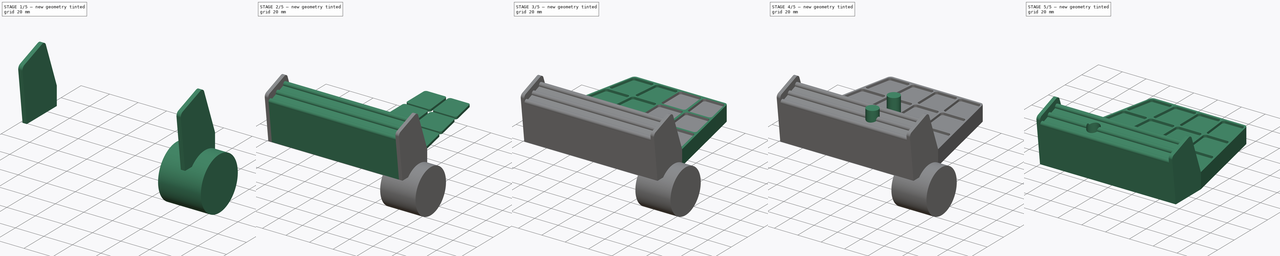
[diagram: build sequence overview — one tinted view per stage of 5, left to right]
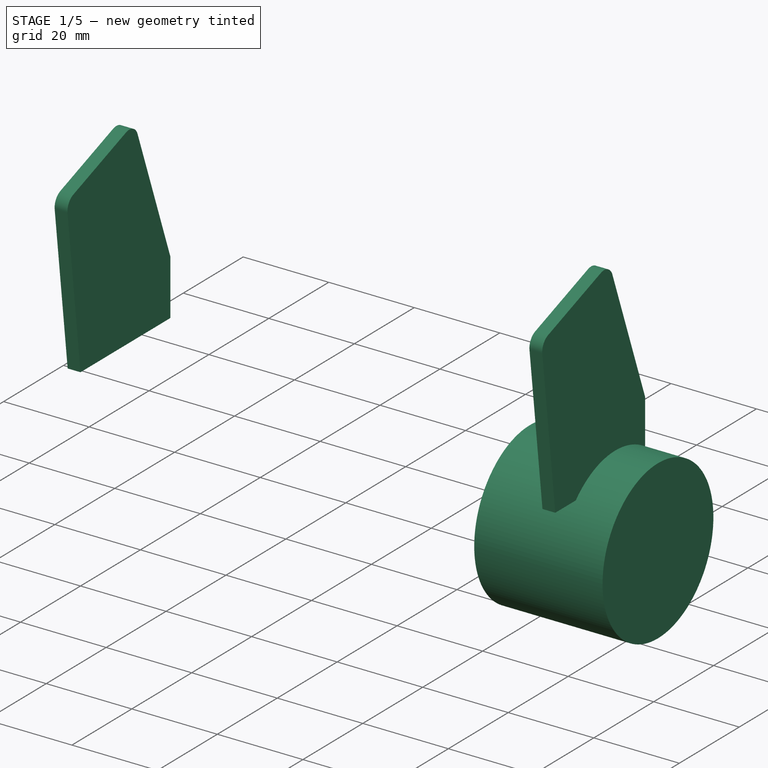
[diagram: stage 1 of 5 — iso view after this stage's code; geometry added in this stage tinted green]
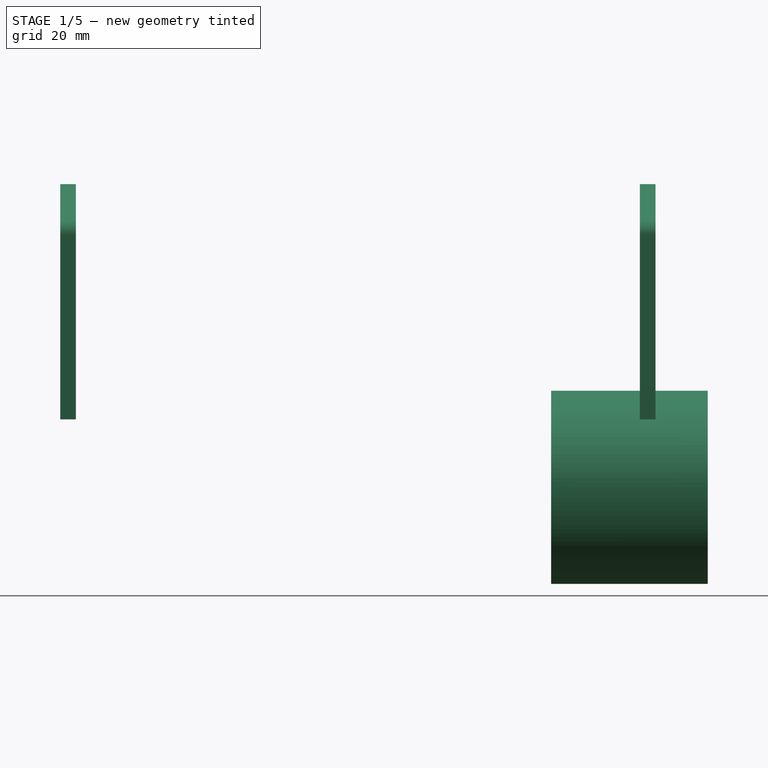
[diagram: stage 1 of 5 — front view after this stage's code; geometry added in this stage tinted green]
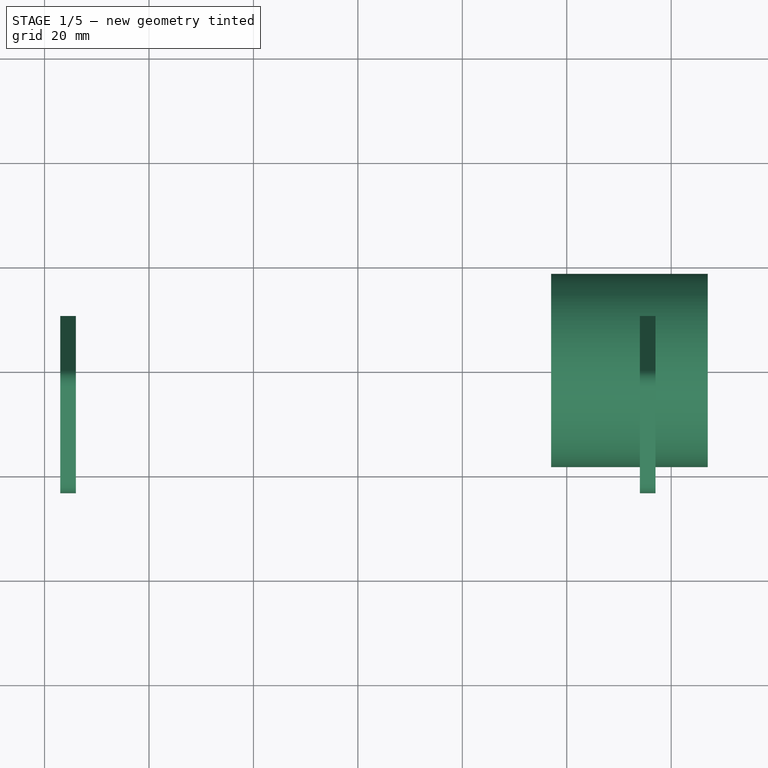
[diagram: stage 1 of 5 — top view after this stage's code; geometry added in this stage tinted green]
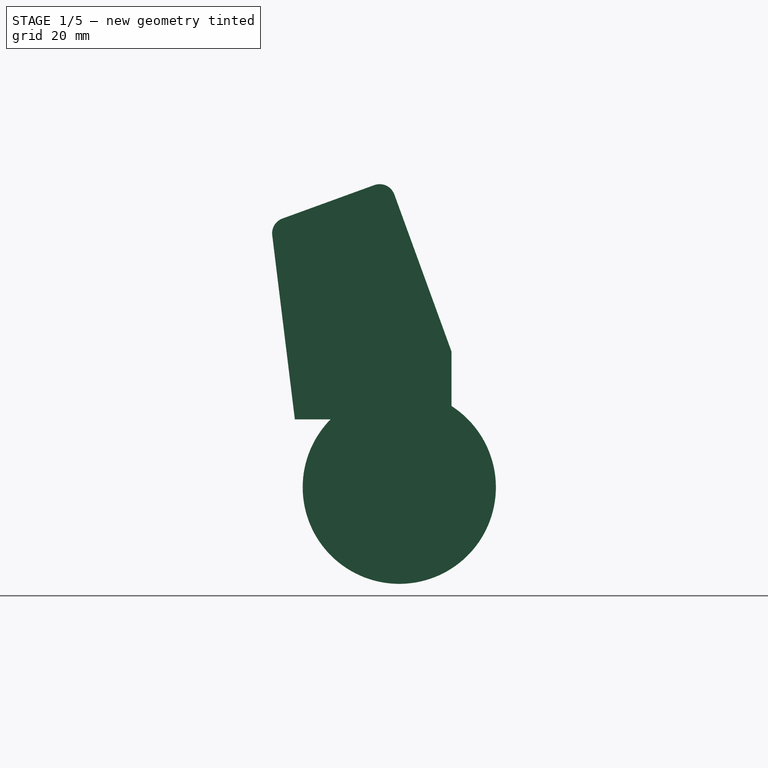
[diagram: stage 1 of 5 — right view after this stage's code; geometry added in this stage tinted green]
FCSTD DOCUMENT  (FreeCAD 0.16R6706 (Git))
Label: rudder_pedals
License: All rights reserved
LicenseURL: http://en.wikipedia.org/wiki/All_rights_reserved
objects: PartDesign::Pad×8, Sketcher::SketchObject×7, Part::Cut×3, Part::MultiFuse×2, Part::FeaturePython×1, Part::Compound×1, Part::Part2DObjectPython×1, Part::Mirroring×1
note: 32 computed .brp shape members not serialized (recipe doc carries the construction recipe); baked Part::Feature solids carry a one-line shape summary decoded from their .brp

FEATURE [Sketcher::SketchObject] Sketch005  label="Sketch (push tread side)"
  Placement = pos=(54,0,0) rot=(0.57735,0.57735,0.57735;2.0944rad)
  expr: Constraints[10] = 90 + 180 - 110
  sketch-geometry (9):
    g0: LineSegment StartX=-20 StartY=-13 StartZ=0 EndX=-24.3314 EndY=22.2763 EndZ=0
    g1: LineSegment StartX=10 StartY=0 StartZ=0 EndX=-0.944644 EndY=30.0702 EndZ=0
    g2: LineSegment StartX=10 StartY=0 StartZ=0 EndX=10 EndY=-13 EndZ=0
    g3: LineSegment StartX=-20 StartY=-13 StartZ=0 EndX=10 EndY=-13 EndZ=0
    g4: LineSegment StartX=-22.3798 StartY=25.4609 StartZ=0 EndX=-4.78978 EndY=31.8632 EndZ=0
    g5: ArcOfCircle CenterX=-3.76372 CenterY=29.0441 CenterZ=0 NormalX=0 NormalY=0 NormalZ=1 Radius=3 StartAngle=0.349066 EndAngle=1.91986
    g6: ArcOfCircle CenterX=-21.3537 CenterY=22.6419 CenterZ=0 NormalX=0 NormalY=0 NormalZ=1 Radius=3 StartAngle=1.91986 EndAngle=3.26376
    g7: LineSegment [constr] StartX=-4.78978 StartY=31.8632 StartZ=0 EndX=-1.97071 EndY=32.8892 EndZ=0
    g8: LineSegment [constr] StartX=-0.944644 StartY=30.0702 StartZ=0 EndX=-1.97071 EndY=32.8892 EndZ=0
  constraints (28):
    c: PointOnObject(g2,g-1)
    c: Vertical(g2)
    c: Coincident(g3,g0)
    c: Coincident(g3,g2)
    c: Horizontal(g3)
    c: DistanceY(g2,g2) = 13
    c: DistanceX(g3,g3) = 30
    c: DistanceX(g-1,g2) = 10
    c: Angle(g3,g0) = 1.69297
    c: Coincident(g1,g2)
    c: Angle(g1,g2) = 2.79253
    c: Perpendicular(g4,g1)
    c: Coincident(g5,g4)
    c: Coincident(g5,g1)
    c: Coincident(g6,g4)
    c: Coincident(g6,g0)
    c: Tangent(g4,g6)
    c: Tangent(g6,g0)
    c: Tangent(g4,g5)
    c: Tangent(g1,g5)
    c: Radius(g5) = 3
    c: Equal(g5,g6)
    c: Coincident(g7,g4)
    c: Coincident(g8,g1)
    c: Coincident(g8,g7)
    c: Parallel(g1,g8)
    c: Parallel(g7,g4)
    c: Distance(g7,g1) = 35
FEATURE [PartDesign::Pad] Pad005  label="Pad (push tread right side)"
  Length = 3
  Length2 = 100
  Placement = pos=(54,0,0) rot=(0.57735,0.57735,0.57735;2.0944rad)
  Sketch = -> Sketch005
  Type = 0
FEATURE [Part::Part2DObjectPython] Clone2D  label="Clone of Sketch (push tread sides)"  # Draft 2D object (typed FeaturePython)
  Objects = -> [Sketch005]
  Placement = pos=(-54,0,0) rot=(0.57735,0.57735,0.57735;2.0944rad)
  Scale = (1,1,1)
FEATURE [PartDesign::Pad] Pad006  label="Pad (push tread left side)"
  Length = 3
  Length2 = 100
  Placement = pos=(-54,0,0) rot=(0.57735,0.57735,0.57735;2.0944rad)
  Reversed = true
  Sketch = -> Clone2D
  Type = 0
FEATURE [Sketcher::SketchObject] Sketch008  label="Sketch (spring cutout)"
  Placement = pos=(37,0,0) rot=(0.57735,0.57735,0.57735;2.0944rad)
  expr: Constraints[3] = 13 - 5.5
  expr: Constraints[4] = 37 / 2
  expr: Placement.Base.x = 57 - 20
  sketch-geometry (3):
    g0: Circle CenterX=0 CenterY=-26 CenterZ=0 NormalX=0 NormalY=0 NormalZ=1 Radius=18.5
    g1: LineSegment [constr] StartX=-5.4181 StartY=-7.5 StartZ=0 EndX=5.33285 EndY=-7.5 EndZ=0
    g2: Circle [constr] CenterX=0 CenterY=-26 CenterZ=0 NormalX=0 NormalY=0 NormalZ=1 Radius=13
  constraints (7):
    c: PointOnObject(g0,g-2)
    c: Horizontal(g1)
    c: Tangent(g1,g0)
    c: DistanceY(g1,g-1) = 7.5
    c: Radius(g0) = 18.5
    c: Coincident(g2,g0)
    c: Radius(g2) = 13
FEATURE [PartDesign::Pad] Pad009  label="Pad (spring cutout)"
  Length = 30
  Length2 = 100
  Placement = pos=(37,0,0) rot=(0.57735,0.57735,0.57735;2.0944rad)
  Sketch = -> Sketch008
  Type = 0
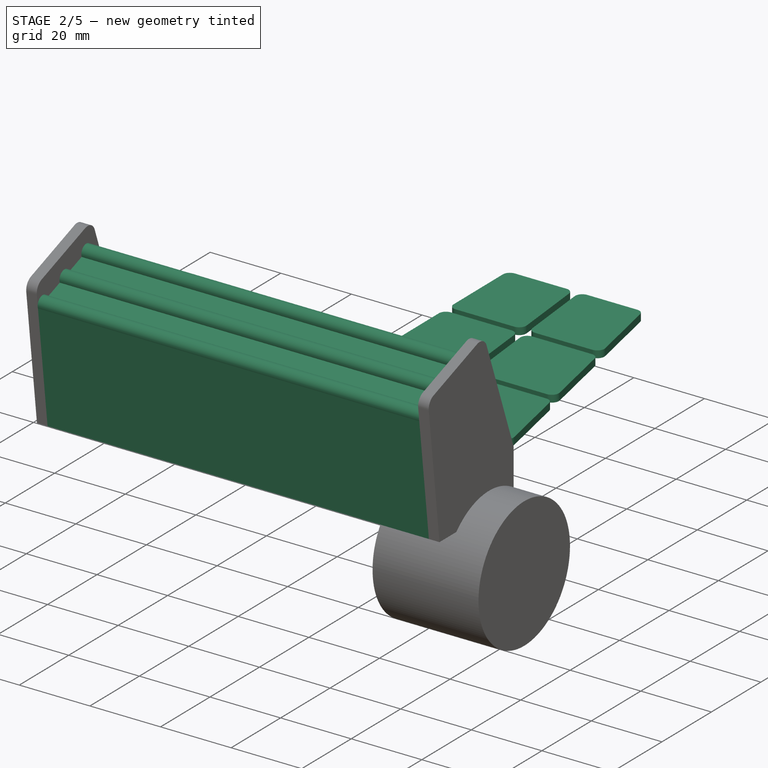
[diagram: stage 2 of 5 — iso view after this stage's code; geometry added in this stage tinted green]
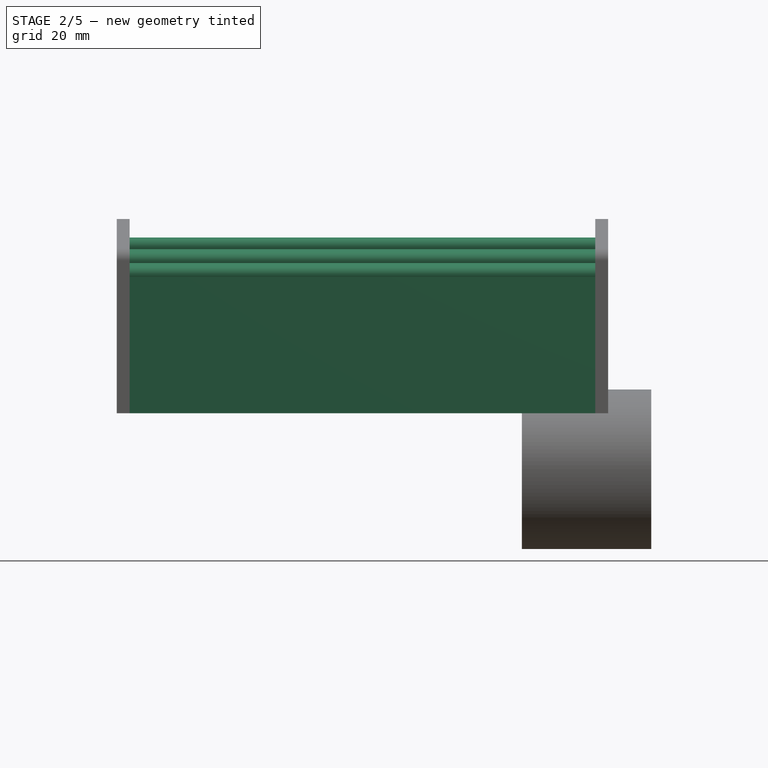
[diagram: stage 2 of 5 — front view after this stage's code; geometry added in this stage tinted green]
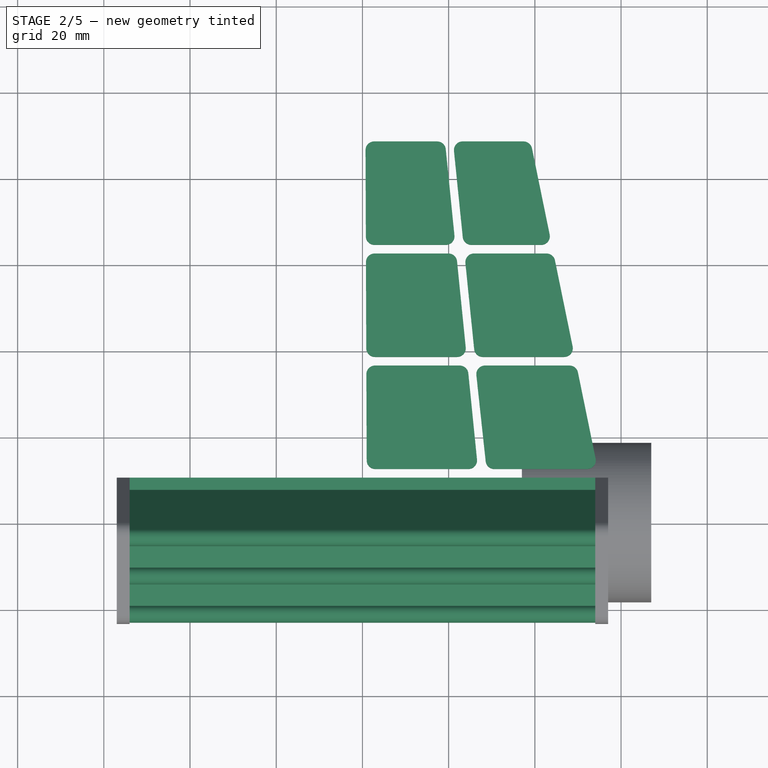
[diagram: stage 2 of 5 — top view after this stage's code; geometry added in this stage tinted green]
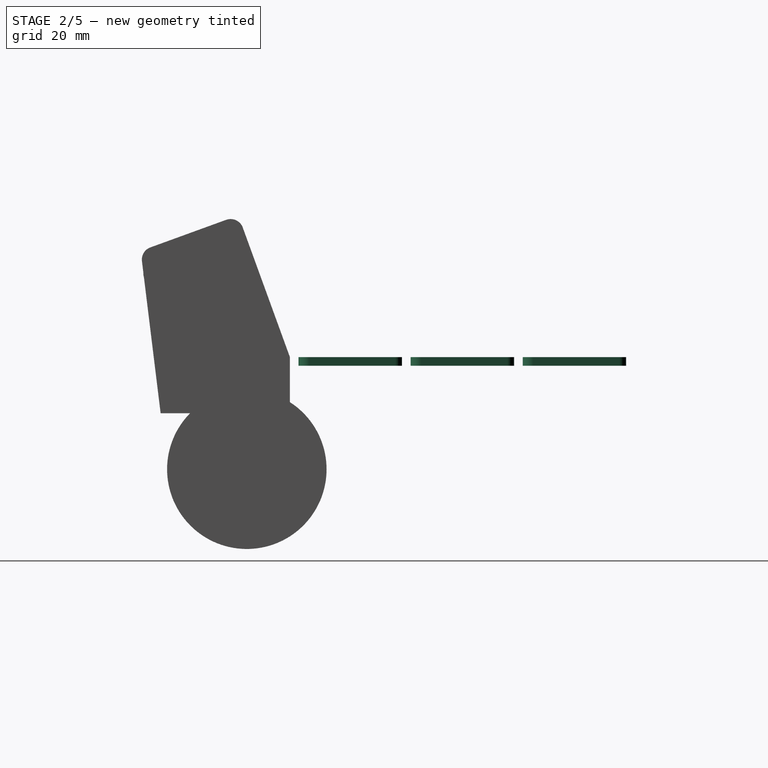
[diagram: stage 2 of 5 — right view after this stage's code; geometry added in this stage tinted green]
FEATURE [Sketcher::SketchObject] Sketch002  label="Sketch (push tread)"
  Placement = pos=(0,0,0) rot=(0.57735,0.57735,0.57735;2.0944rad)
  sketch-geometry (13):
    g0: LineSegment StartX=-20 StartY=-13 StartZ=0 EndX=-23.8846 EndY=18.6371 EndZ=0
    g1: LineSegment StartX=7.15703 StartY=0 StartZ=0 EndX=-2.46401 EndY=26.4336 EndZ=0
    g2: ArcOfCircle CenterX=-4.34339 CenterY=25.7495 CenterZ=0 NormalX=0 NormalY=0 NormalZ=1 Radius=2 StartAngle=0.349066 EndAngle=3.49066
    g3: LineSegment StartX=-6.22278 StartY=25.0655 StartZ=0 EndX=-11.2949 EndY=23.2194 EndZ=0
    g4: ArcOfCircle CenterX=-13.1743 CenterY=22.5354 CenterZ=0 NormalX=0 NormalY=0 NormalZ=1 Radius=2 StartAngle=0.349066 EndAngle=3.49066
    g5: LineSegment StartX=-15.0537 StartY=21.8513 StartZ=0 EndX=-20.1258 EndY=20.0052 EndZ=0
    g6: ArcOfCircle CenterX=-22.0052 CenterY=19.3212 CenterZ=0 NormalX=0 NormalY=0 NormalZ=1 Radius=2 StartAngle=0.349066 EndAngle=3.49066
    g7: LineSegment [constr] StartX=-15.0537 StartY=21.8513 StartZ=0 EndX=-11.2949 EndY=23.2194 EndZ=0
    g8: LineSegment [constr] StartX=-6.22278 StartY=25.0655 StartZ=0 EndX=-2.46401 EndY=26.4336 EndZ=0
    g9: LineSegment [constr] StartX=-23.8846 StartY=18.6371 StartZ=0 EndX=-20.1258 EndY=20.0052 EndZ=0
    g10: LineSegment StartX=7.15703 StartY=0 StartZ=0 EndX=10 EndY=0 EndZ=0
    g11: LineSegment StartX=10 StartY=0 StartZ=0 EndX=10 EndY=-13 EndZ=0
    g12: LineSegment StartX=-20 StartY=-13 StartZ=0 EndX=10 EndY=-13 EndZ=0
  constraints (39):
    c: Coincident(g2,g1)
    c: Coincident(g3,g2)
    c: Coincident(g4,g3)
    c: Coincident(g5,g4)
    c: Coincident(g6,g5)
    c: PointOnObject(g6,g0)
    c: Radius(g4) = 2
    c: Equal(g4,g2)
    c: Equal(g4,g6)
    c: Coincident(g7,g4)
    c: Coincident(g7,g3)
    c: PointOnObject(g4,g7)
    c: Coincident(g8,g2)
    c: Coincident(g8,g1)
    c: PointOnObject(g2,g8)
    c: Coincident(g9,g6)
    c: PointOnObject(g9,g5)
    c: Coincident(g5,g9)
    c: Parallel(g9,g5)
    c: Parallel(g5,g7)
    c: Parallel(g7,g3)
    c: Parallel(g3,g8)
    c: PointOnObject(g6,g9)
    c: Coincident(g10,g1)
    c: PointOnObject(g10,g-1)
    c: Horizontal(g10)
    c: Coincident(g11,g10)
    c: Vertical(g11)
    c: Coincident(g12,g0)
    c: Coincident(g12,g11)
    c: Horizontal(g12)
    c: Coincident(g0,g6)
    c: DistanceY(g11,g11) = 13
    c: DistanceX(g12,g12) = 30
    c: Angle(g10,g1) = 1.91986
    c: DistanceX(g-1,g10) = 10
    c: Perpendicular(g8,g1)
    c: Angle(g12,g0) = 1.69297
    c: Equal(g5,g3)
FEATURE [Sketcher::SketchObject] Sketch004  label="Sketch (tread)"
  sketch-geometry (70):
    g0: LineSegment [constr] StartX=-57 StartY=10 StartZ=0 EndX=0 EndY=278.164 EndZ=0
    g1: LineSegment [constr] StartX=-34.7912 StartY=90 StartZ=0 EndX=34.3674 EndY=90 EndZ=0
    g2: GeomPoint [constr] X=0 Y=0 Z=0
    g3: LineSegment StartX=-48.036 StartY=36.0001 StartZ=0 EndX=-28.4162 EndY=36.0001 EndZ=0
    g4: LineSegment StartX=-26.4278 StartY=33.7851 StartZ=0 EndX=-28.5907 EndY=13.785 EndZ=0
    g5: LineSegment StartX=-30.5791 StartY=12 StartZ=0 EndX=-52.138 EndY=12 EndZ=0
    g6: LineSegment StartX=-54.0972 StartY=14.4018 StartZ=0 EndX=-49.9952 EndY=34.4019 EndZ=0
    g7: ArcOfCircle CenterX=-48.036 CenterY=34.0001 CenterZ=0 NormalX=0 NormalY=0 NormalZ=1 Radius=2 StartAngle=1.5708 EndAngle=2.9393
    g8: ArcOfCircle CenterX=-52.138 CenterY=14 CenterZ=0 NormalX=0 NormalY=0 NormalZ=1 Radius=2 StartAngle=2.9393 EndAngle=4.71239
    g9: ArcOfCircle CenterX=-30.5791 CenterY=14 CenterZ=0 NormalX=0 NormalY=0 NormalZ=1 Radius=2 StartAngle=4.71239 EndAngle=6.17546
    g10: ArcOfCircle CenterX=-28.4162 CenterY=34.0001 CenterZ=0 NormalX=0 NormalY=0 NormalZ=1 Radius=2 StartAngle=6.17546 EndAngle=7.85398
    g11: LineSegment StartX=-42.7034 StartY=62 StartZ=0 EndX=-25.8745 EndY=62 EndZ=0
    g12: LineSegment StartX=-23.8848 StartY=59.7973 StartZ=0 EndX=-25.9229 EndY=39.7972 EndZ=0
    g13: LineSegment StartX=-27.9126 StartY=38 StartZ=0 EndX=-46.8054 EndY=38 EndZ=0
    g14: LineSegment StartX=-48.7646 StartY=40.4018 StartZ=0 EndX=-44.6627 EndY=60.4019 EndZ=0
    g15: ArcOfCircle CenterX=-42.7034 CenterY=60 CenterZ=0 NormalX=0 NormalY=0 NormalZ=1 Radius=2 StartAngle=1.5708 EndAngle=2.9393
    g16: ArcOfCircle CenterX=-46.8054 CenterY=40 CenterZ=0 NormalX=0 NormalY=0 NormalZ=1 Radius=2 StartAngle=2.9393 EndAngle=4.71239
    g17: ArcOfCircle CenterX=-27.9126 CenterY=40 CenterZ=0 NormalX=0 NormalY=0 NormalZ=1 Radius=2 StartAngle=4.71239 EndAngle=6.18163
    g18: ArcOfCircle CenterX=-25.8745 CenterY=60 CenterZ=0 NormalX=0 NormalY=0 NormalZ=1 Radius=2 StartAngle=6.18163 EndAngle=7.85398
    g19: LineSegment StartX=-22.5734 StartY=36.0001 StartZ=0 EndX=-2.91052 EndY=36.0001 EndZ=0
    g20: LineSegment StartX=-0.91053 StartY=33.9926 StartZ=0 EndX=-0.985112 EndY=13.9925 EndZ=0
    g21: LineSegment StartX=-2.9851 StartY=12 StartZ=0 EndX=-24.5871 EndY=12 EndZ=0
    g22: LineSegment StartX=-26.5771 StartY=14.2004 StartZ=0 EndX=-24.5634 EndY=34.2004 EndZ=0
    g23: ArcOfCircle CenterX=-22.5734 CenterY=34.0001 CenterZ=0 NormalX=0 NormalY=0 NormalZ=1 Radius=2 StartAngle=1.5708 EndAngle=3.04125
    g24: ArcOfCircle CenterX=-24.5871 CenterY=14 CenterZ=0 NormalX=0 NormalY=0 NormalZ=1 Radius=2 StartAngle=3.04125 EndAngle=4.71239
    g25: ArcOfCircle CenterX=-2.9851 CenterY=14 CenterZ=0 NormalX=0 NormalY=0 NormalZ=1 Radius=2 StartAngle=4.71239 EndAngle=6.27946
    g26: ArcOfCircle CenterX=-2.91052 CenterY=34.0001 CenterZ=0 NormalX=0 NormalY=0 NormalZ=1 Radius=2 StartAngle=6.27946 EndAngle=7.85398
    g27: LineSegment StartX=-19.9556 StartY=62 StartZ=0 EndX=-2.81356 EndY=62 EndZ=0
    g28: LineSegment StartX=-0.813575 StartY=59.9926 StartZ=0 EndX=-0.888156 EndY=39.9925 EndZ=0
    g29: LineSegment StartX=-2.88814 StartY=38 StartZ=0 EndX=-21.9694 EndY=38 EndZ=0
    g30: LineSegment StartX=-23.9593 StartY=40.2003 StartZ=0 EndX=-21.9456 EndY=60.2004 EndZ=0
    g31: ArcOfCircle CenterX=-19.9556 CenterY=60 CenterZ=0 NormalX=0 NormalY=0 NormalZ=1 Radius=2 StartAngle=1.5708 EndAngle=3.04125
    g32: ArcOfCircle CenterX=-21.9694 CenterY=40 CenterZ=0 NormalX=0 NormalY=0 NormalZ=1 Radius=2 StartAngle=3.04125 EndAngle=4.71239
    g33: ArcOfCircle CenterX=-2.88814 CenterY=40 CenterZ=0 NormalX=0 NormalY=0 NormalZ=1 Radius=2 StartAngle=4.71239 EndAngle=6.27946
    g34: ArcOfCircle CenterX=-2.81356 CenterY=60 CenterZ=0 NormalX=0 NormalY=0 NormalZ=1 Radius=2 StartAngle=6.27946 EndAngle=7.85398
    g35: LineSegment StartX=-37.3709 StartY=88 StartZ=0 EndX=-23.225 EndY=88 EndZ=0
    g36: LineSegment StartX=-21.2353 StartY=85.7972 StartZ=0 EndX=-23.2734 EndY=65.7972 EndZ=0
    g37: LineSegment StartX=-25.2631 StartY=63.9999 StartZ=0 EndX=-41.4729 EndY=63.9999 EndZ=0
    g38: LineSegment StartX=-43.4321 StartY=66.4017 StartZ=0 EndX=-39.3301 EndY=86.4018 EndZ=0
    g39: ArcOfCircle CenterX=-37.3709 CenterY=86 CenterZ=0 NormalX=0 NormalY=0 NormalZ=1 Radius=2 StartAngle=1.5708 EndAngle=2.9393
    g40: ArcOfCircle CenterX=-41.4729 CenterY=65.9999 CenterZ=0 NormalX=0 NormalY=0 NormalZ=1 Radius=2 StartAngle=2.9393 EndAngle=4.71239
    g41: ArcOfCircle CenterX=-25.2631 CenterY=65.9999 CenterZ=0 NormalX=0 NormalY=0 NormalZ=1 Radius=2 StartAngle=4.71239 EndAngle=6.18163
    g42: ArcOfCircle CenterX=-23.225 CenterY=86 CenterZ=0 NormalX=0 NormalY=0 NormalZ=1 Radius=2 StartAngle=6.18163 EndAngle=7.85398
    g43: LineSegment StartX=-17.3379 StartY=88 StartZ=0 EndX=-2.71661 EndY=88 EndZ=0
    g44: LineSegment StartX=-0.716619 StartY=85.9925 StartZ=0 EndX=-0.791201 EndY=65.9925 EndZ=0
    g45: LineSegment StartX=-2.79119 StartY=63.9999 StartZ=0 EndX=-19.3516 EndY=63.9999 EndZ=0
    g46: LineSegment StartX=-21.3415 StartY=66.2003 StartZ=0 EndX=-19.3278 EndY=86.2004 EndZ=0
    g47: ArcOfCircle CenterX=-17.3379 CenterY=86 CenterZ=0 NormalX=0 NormalY=0 NormalZ=1 Radius=2 StartAngle=1.5708 EndAngle=3.04125
    g48: ArcOfCircle CenterX=-19.3516 CenterY=65.9999 CenterZ=0 NormalX=0 NormalY=0 NormalZ=1 Radius=2 StartAngle=3.04125 EndAngle=4.71239
    g49: ArcOfCircle CenterX=-2.79119 CenterY=65.9999 CenterZ=0 NormalX=0 NormalY=0 NormalZ=1 Radius=2 StartAngle=4.71239 EndAngle=6.27946
    g50: ArcOfCircle CenterX=-2.71661 CenterY=86 CenterZ=0 NormalX=0 NormalY=0 NormalZ=1 Radius=2 StartAngle=6.27946 EndAngle=7.85398
    g51: LineSegment [constr] StartX=0 StartY=278.164 StartZ=0 EndX=-1 EndY=10 EndZ=0
    g52: LineSegment [constr] StartX=0 StartY=278.164 StartZ=0 EndX=-27 EndY=10 EndZ=0
    g53: LineSegment [constr] StartX=0 StartY=278.164 StartZ=0 EndX=-29 EndY=10 EndZ=0
    g54: LineSegment [constr] StartX=0 StartY=278.164 StartZ=0 EndX=-55 EndY=10 EndZ=0
    g55: LineSegment [constr] StartX=-57 StartY=10 StartZ=0 EndX=-55 EndY=10 EndZ=0
    g56: LineSegment [constr] StartX=-29 StartY=10 StartZ=0 EndX=-27 EndY=10 EndZ=0
    g57: LineSegment [constr] StartX=-1 StartY=10 StartZ=0 EndX=0 EndY=10 EndZ=0
    g58: LineSegment [constr] StartX=-55 StartY=10 StartZ=0 EndX=-29 EndY=10 EndZ=0
    g59: LineSegment [constr] StartX=-27 StartY=10 StartZ=0 EndX=-1 EndY=10 EndZ=0
    g60: LineSegment [constr] StartX=-23.2734 StartY=65.7972 StartZ=0 EndX=-24.1976 EndY=56.7273 EndZ=0
    g61: LineSegment [constr] StartX=-24.1976 StartY=56.7273 StartZ=0 EndX=-23.8848 EndY=59.7973 EndZ=0
    g62: LineSegment [constr] StartX=-25.2631 StartY=63.9999 StartZ=0 EndX=-19.3516 EndY=63.9999 EndZ=0
    g63: LineSegment [constr] StartX=-25.8745 StartY=62 StartZ=0 EndX=-19.9556 EndY=62 EndZ=0
    g64: LineSegment [constr] StartX=-28.4162 StartY=36.0001 StartZ=0 EndX=-22.5734 EndY=36.0001 EndZ=0
    g65: LineSegment [constr] StartX=-27.9126 StartY=38 StartZ=0 EndX=-21.9694 EndY=38 EndZ=0
    g66: LineSegment [constr] StartX=-30.5791 StartY=12 StartZ=0 EndX=-24.5871 EndY=12 EndZ=0
    g67: LineSegment StartX=-26.686 StartY=31.3978 StartZ=0 EndX=-26.4278 EndY=33.7851 EndZ=0
    g68: LineSegment [constr] StartX=-23.225 StartY=88 StartZ=0 EndX=-17.3379 EndY=88 EndZ=0
    g69: LineSegment [constr] StartX=-34.7912 StartY=90 StartZ=0 EndX=-34.7912 EndY=88 EndZ=0
  constraints (169):
    c: Horizontal(g1)
    c: Coincident(g2,g-1)
    c: DistanceY(g-1,g1) = 90
    c: Horizontal(g5)
    c: Tangent(g3,g7) = 1.5708
    c: Tangent(g6,g7) = 1.5708
    c: Tangent(g6,g8) = 1.5708
    c: Tangent(g5,g8) = 1.5708
    c: Tangent(g5,g9) = 1.5708
    c: Tangent(g4,g9) = 1.5708
    c: Tangent(g3,g10) = 1.5708
    c: Tangent(g4,g10) = 1.5708
    c: Horizontal(g3)
    c: Radius(g9) = 2
    c: Equal(g9,g8)
    c: Equal(g9,g7)
    c: Equal(g9,g10)
    c: Horizontal(g13)
    c: Tangent(g11,g15) = 1.5708
    c: Tangent(g14,g15) = 1.5708
    c: Tangent(g14,g16) = 1.5708
    c: Tangent(g13,g16) = 1.5708
    c: Tangent(g13,g17) = 1.5708
    c: Tangent(g12,g17) = 1.5708
    c: Tangent(g11,g18) = 1.5708
    c: Tangent(g12,g18) = 1.5708
    c: Horizontal(g11)
    c: Equal(g9,g17) = 2
    c: Equal(g17,g16)
    c: Equal(g17,g15)
    c: Equal(g17,g18)
    c: Horizontal(g21)
    c: Tangent(g19,g23) = 1.5708
    c: Tangent(g22,g23) = 1.5708
    c: Tangent(g22,g24) = 1.5708
    c: Tangent(g21,g24) = 1.5708
    c: Tangent(g21,g25) = 1.5708
    c: Tangent(g20,g25) = 1.5708
    c: Tangent(g19,g26) = 1.5708
    c: Tangent(g20,g26) = 1.5708
    c: Horizontal(g19)
    c: Equal(g9,g25) = 2
    c: Equal(g25,g24)
    c: Equal(g25,g23)
    c: Equal(g25,g26)
    c: Horizontal(g29)
    c: Tangent(g27,g31) = 1.5708
    c: Tangent(g30,g31) = 1.5708
    c: Tangent(g30,g32) = 1.5708
    c: Tangent(g29,g32) = 1.5708
    c: Tangent(g29,g33) = 1.5708
    c: Tangent(g28,g33) = 1.5708
    c: Tangent(g27,g34) = 1.5708
    c: Tangent(g28,g34) = 1.5708
    c: Horizontal(g27)
    c: Equal(g9,g33) = 2
    c: Equal(g33,g32)
    c: Equal(g33,g31)
    c: Equal(g33,g34)
    c: Horizontal(g37)
    c: Tangent(g35,g39) = 1.5708
    c: Tangent(g38,g39) = 1.5708
    c: Tangent(g38,g40) = 1.5708
    c: Tangent(g37,g40) = 1.5708
    c: Tangent(g37,g41) = 1.5708
    c: Tangent(g36,g41) = 1.5708
    c: Tangent(g35,g42) = 1.5708
    c: Tangent(g36,g42) = 1.5708
    c: Horizontal(g35)
    c: Equal(g9,g41) = 2
    c: Equal(g41,g40)
    c: Equal(g41,g39)
    c: Equal(g41,g42)
    c: Horizontal(g45)
    c: Tangent(g43,g47) = 1.5708
    c: Tangent(g46,g47) = 1.5708
    c: Tangent(g46,g48) = 1.5708
    c: Tangent(g45,g48) = 1.5708
    c: Tangent(g45,g49) = 1.5708
    c: Tangent(g44,g49) = 1.5708
    c: Tangent(g43,g50) = 1.5708
    c: Tangent(g44,g50) = 1.5708
    c: Horizontal(g43)
    c: Equal(g9,g49) = 2
    c: Equal(g49,g48)
    c: Equal(g49,g47)
    c: Equal(g49,g50)
    c: DistanceX(g0,g-1) = 57
    c: PointOnObject(g0,g-2)
    c: Coincident(g51,g0)
    c: DistanceY(g-1,g0) = 10
    c: Coincident(g52,g0)
    c: Coincident(g53,g0)
    c: Coincident(g54,g0)
    c: Tangent(g54,g8)
    c: Coincident(g55,g0)
    c: Coincident(g55,g54)
    c: Horizontal(g55)
    c: Coincident(g56,g53)
    c: Coincident(g56,g52)
    c: Horizontal(g56)
    c: Coincident(g57,g51)
    c: PointOnObject(g57,g-2)
    c: Horizontal(g57)
    c: DistanceX(g55,g55) = 2
    c: DistanceX(g56,g56) = 2
    c: Coincident(g58,g54)
    c: Coincident(g58,g53)
    c: Horizontal(g58)
    c: Coincident(g59,g52)
    c: Horizontal(g59)
    c: Coincident(g51,g59)
    c: Equal(g59,g58)
    c: PointOnObject(g4,g53)
    c: PointOnObject(g4,g53)
    c: PointOnObject(g22,g52)
    c: PointOnObject(g22,g52)
    c: PointOnObject(g20,g51)
    c: PointOnObject(g20,g51)
    c: Angle(g58,g0) = 1.36136
    c: Coincident(g60,g36)
    c: Coincident(g61,g60)
    c: Coincident(g61,g12)
    c: Coincident(g62,g37)
    c: Coincident(g62,g45)
    c: Horizontal(g62)
    c: Coincident(g63,g11)
    c: Coincident(g27,g63)
    c: Horizontal(g63)
    c: Coincident(g64,g19)
    c: Coincident(g64,g3)
    c: Coincident(g65,g29)
    c: Coincident(g65,g13)
    c: Horizontal(g65)
    c: Horizontal(g64)
    c: Coincident(g66,g21)
    c: Coincident(g5,g66)
    c: Horizontal(g66)
    c: Coincident(g67,g4)
    c: Parallel(g4,g67)
    c: Parallel(g12,g61)
    c: Parallel(g61,g60)
    c: Parallel(g60,g36)
    c: Parallel(g22,g30)
    c: Parallel(g30,g46)
    c: PointOnObject(g46,g52)
    c: PointOnObject(g30,g52)
    c: Parallel(g20,g28)
    c: Parallel(g28,g44)
    c: PointOnObject(g28,g51)
    c: PointOnObject(g44,g51)
    c: Parallel(g6,g14)
    c: Parallel(g14,g38)
    c: PointOnObject(g14,g54)
    c: PointOnObject(g38,g54)
    c: Horizontal(g68)
    c: Coincident(g68,g43)
    c: Coincident(g35,g68)
    c: DistanceY(g54,g5) = 2
    c: Equal(g6,g14)
    c: Equal(g14,g38)
    c: Distance(g29,g19) = 2
    c: Distance(g45,g27) = 2
    c: Coincident(g69,g1)
    c: PointOnObject(g69,g35)
    c: Vertical(g69)
    c: DistanceY(g69,g69) = 2
    c: DistanceX(g57,g57) = 1
    c: PointOnObject(g14,g54)
FEATURE [PartDesign::Pad] Pad003  label="Pad (tread)"
  Length = 2
  Length2 = 2
  Reversed = true
  Sketch = -> Sketch004
  Type = 0
FEATURE [Part::FeaturePython] Clone  label="Clone of Pad (tread)"  # Draft clone (typed FeaturePython)
  Objects = -> [Pad003]
  Placement = pos=(0,0,-2) rot=(0,1,0;3.14159rad)
  Scale = (1,1,1)
FEATURE [PartDesign::Pad] Pad004  label="Pad (push tread)"
  Length = 54
  Length2 = 54
  Placement = pos=(0,0,0) rot=(0.57735,0.57735,0.57735;2.0944rad)
  Sketch = -> Sketch002
  Type = 4
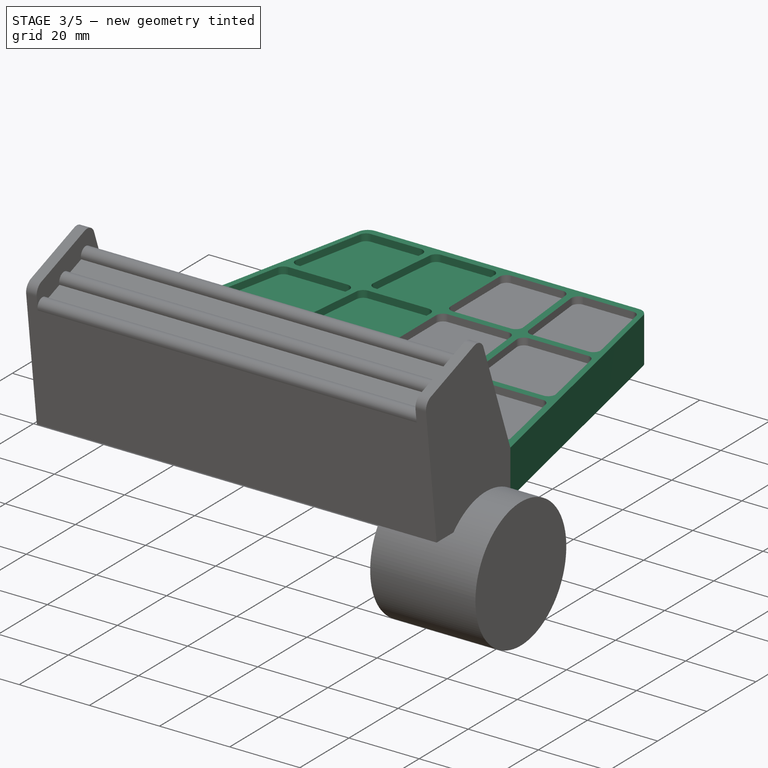
[diagram: stage 3 of 5 — iso view after this stage's code; geometry added in this stage tinted green]
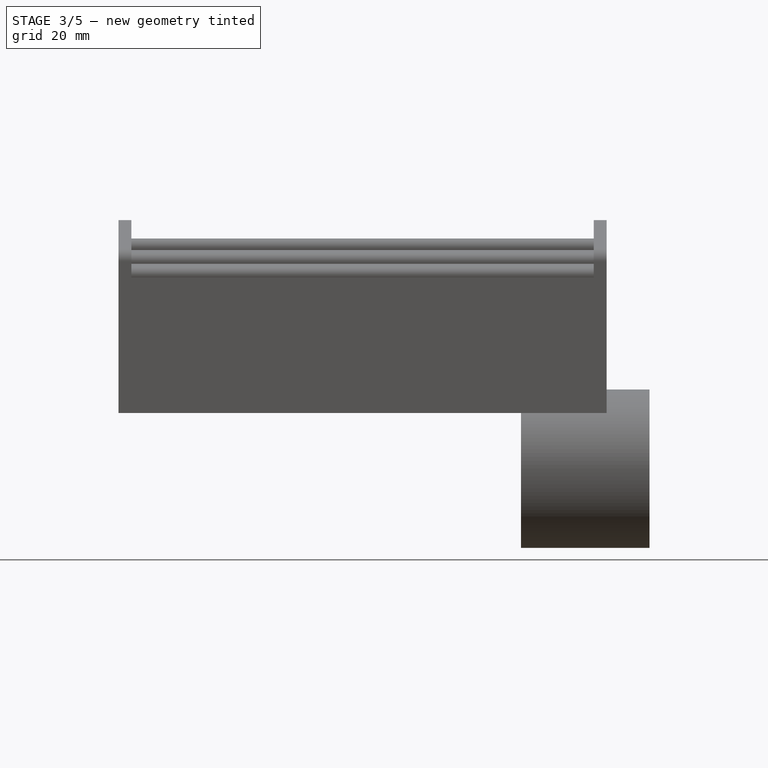
[diagram: stage 3 of 5 — front view after this stage's code; geometry added in this stage tinted green]
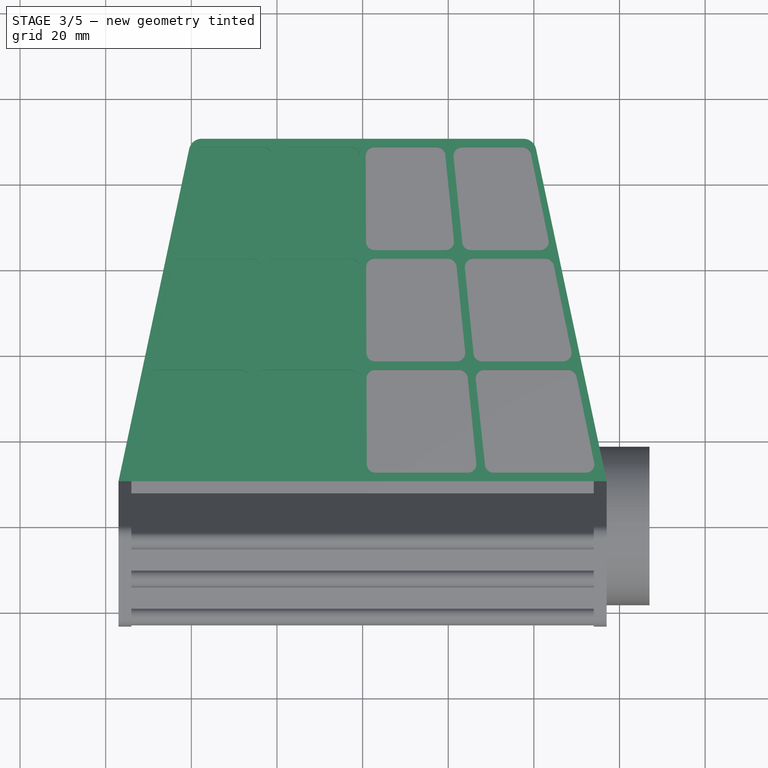
[diagram: stage 3 of 5 — top view after this stage's code; geometry added in this stage tinted green]
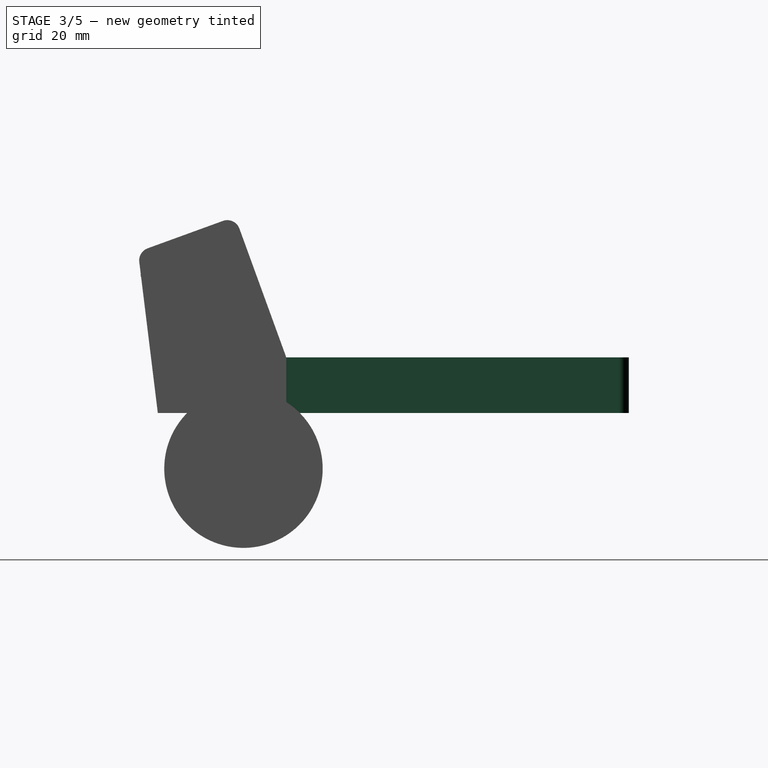
[diagram: stage 3 of 5 — right view after this stage's code; geometry added in this stage tinted green]
FEATURE [Sketcher::SketchObject] Sketch  label="Sketch (base)"
  sketch-geometry (7):
    g0: LineSegment StartX=-57 StartY=10 StartZ=0 EndX=-40.5006 EndY=87.6237 EndZ=0
    g1: LineSegment StartX=-37.5661 StartY=90 StartZ=0 EndX=37.5661 EndY=90 EndZ=0
    g2: LineSegment StartX=40.5006 StartY=87.6237 StartZ=0 EndX=57 EndY=10 EndZ=0
    g3: LineSegment StartX=-57 StartY=10 StartZ=0 EndX=57 EndY=10 EndZ=0
    g4: GeomPoint [constr] X=0 Y=0 Z=0
    g5: ArcOfCircle CenterX=-37.5661 CenterY=87 CenterZ=0 NormalX=0 NormalY=0 NormalZ=1 Radius=3 StartAngle=1.5708 EndAngle=2.93215
    g6: ArcOfCircle CenterX=37.5661 CenterY=87 CenterZ=0 NormalX=0 NormalY=0 NormalZ=1 Radius=3 StartAngle=0.20944 EndAngle=1.5708
  constraints (17):
    c: Horizontal(g1)
    c: Coincident(g3,g0)
    c: Coincident(g3,g2)
    c: Horizontal(g3)
    c: Coincident(g4,g-1)
    c: Tangent(g1,g5) = 1.5708
    c: Tangent(g0,g5) = 1.5708
    c: Tangent(g1,g6) = 1.5708
    c: Tangent(g2,g6) = 1.5708
    c: Equal(g5,g6)
    c: Angle(g3,g0) = 1.36136
    c: Angle(g2,g3) = 1.36136
    c: Radius(g6) = 3
    c: DistanceX(g3,g3) = 114
    c: DistanceY(g-1,g0) = 10
    c: Symmetric(g0,g2,g-2)
    c: DistanceY(g-1,g1) = 90
FEATURE [PartDesign::Pad] Pad  label="Pad (base)"
  Length = 13
  Length2 = 100
  Reversed = true
  Sketch = -> Sketch
  Type = 0
FEATURE [Part::Compound] Compound
  Links = -> [Pad003,Clone]
FEATURE [Part::Cut] Cut
  Base = -> Pad
  Tool = -> Compound
FEATURE [Part::MultiFuse] Fusion001  label="Fusion (bolt holes)"
  Shapes = -> [Cut,Pad006,Pad005,Pad004]
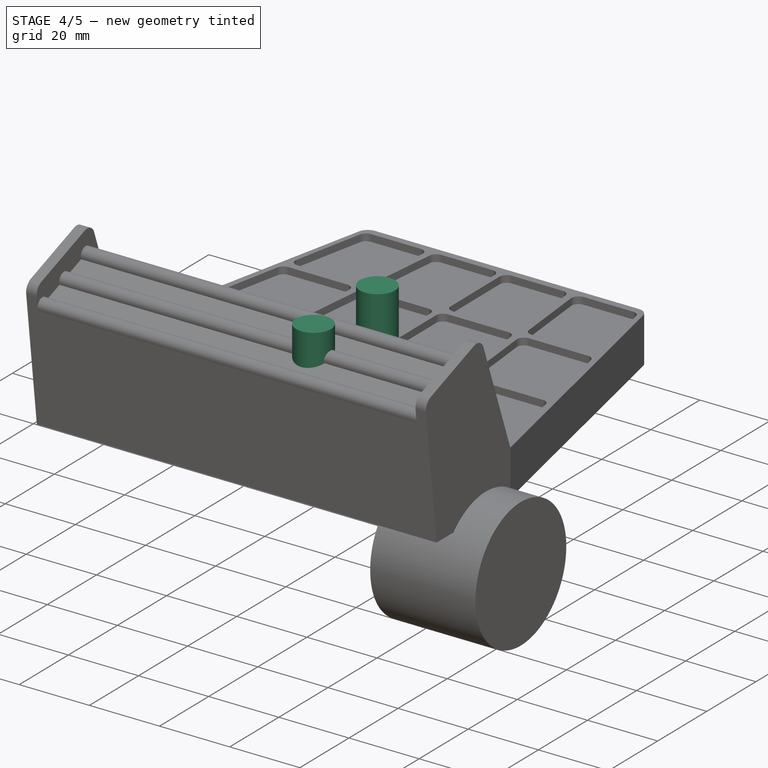
[diagram: stage 4 of 5 — iso view after this stage's code; geometry added in this stage tinted green]
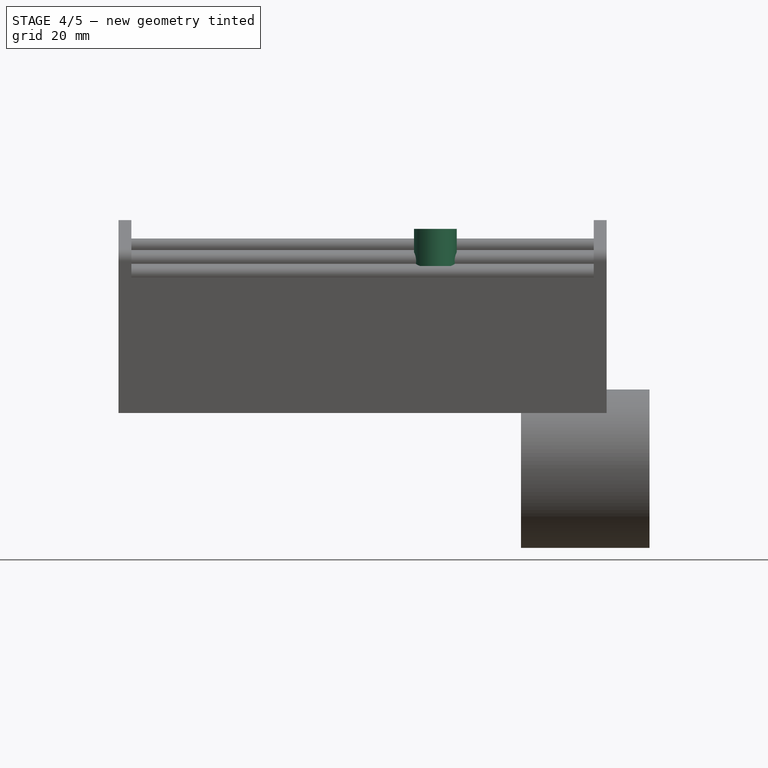
[diagram: stage 4 of 5 — front view after this stage's code; geometry added in this stage tinted green]
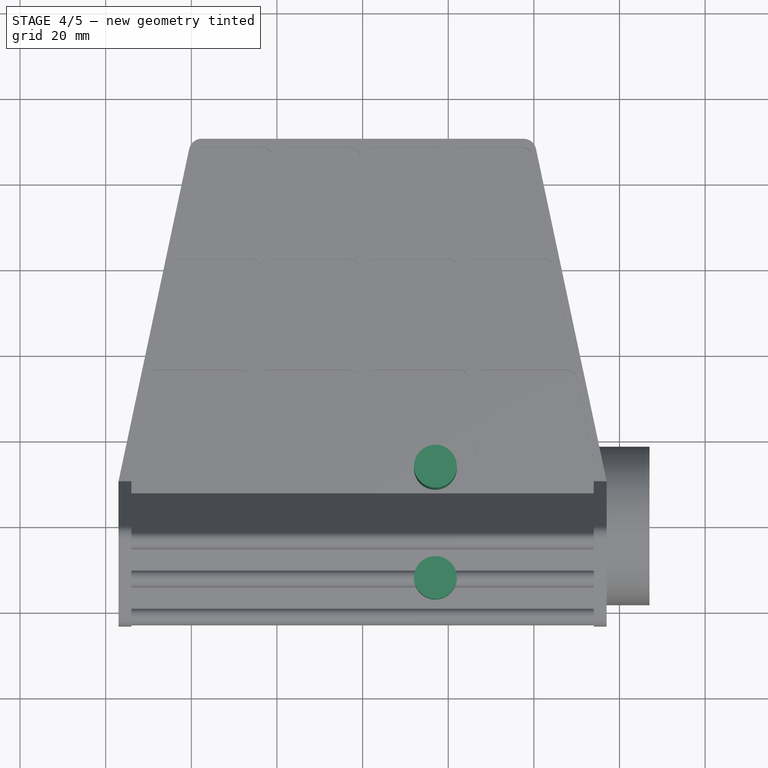
[diagram: stage 4 of 5 — top view after this stage's code; geometry added in this stage tinted green]
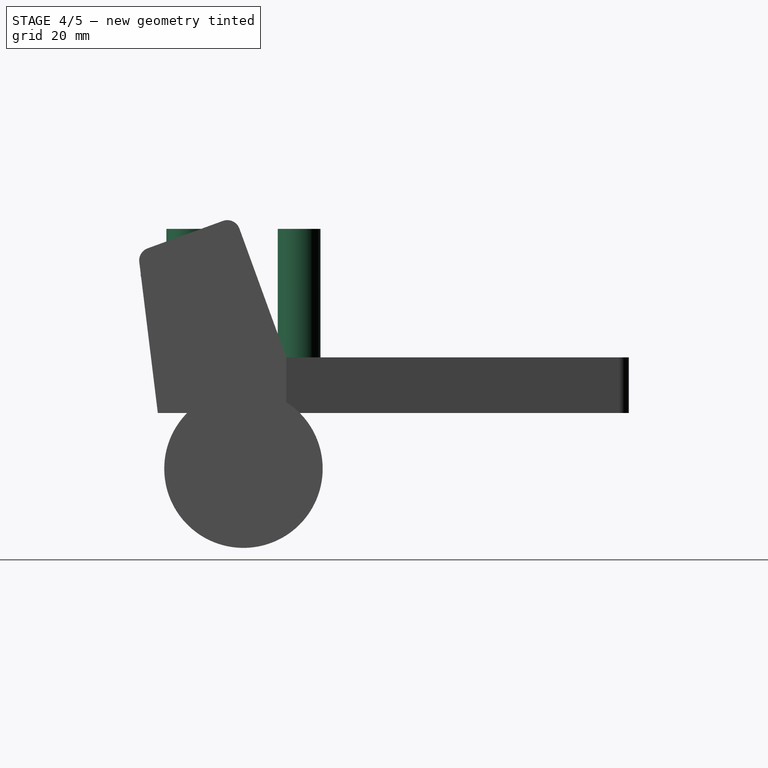
[diagram: stage 4 of 5 — right view after this stage's code; geometry added in this stage tinted green]
FEATURE [Sketcher::SketchObject] Sketch006
  Placement = pos=(0,0,-13) rot=(0,0,1;0rad)
  sketch-geometry (4):
    g0: Circle CenterX=17 CenterY=-13 CenterZ=0 NormalX=0 NormalY=0 NormalZ=1 Radius=3.1
    g1: Circle CenterX=17 CenterY=13 CenterZ=0 NormalX=0 NormalY=0 NormalZ=1 Radius=3.1
    g2: GeomPoint [constr] X=57 Y=0 Z=0
    g3: LineSegment [constr] StartX=17 StartY=13 StartZ=0 EndX=17 EndY=-13 EndZ=0
  constraints (10):
    c: PointOnObject(g2,g-1)
    c: DistanceX(g-1,g2) = 57
    c: DistanceX(g1,g2) = 40
    c: Coincident(g3,g1)
    c: Coincident(g3,g0)
    c: Vertical(g3)
    c: Radius(g0) = 3.1
    c: Equal(g0,g1)
    c: DistanceY(g3,g3) = 26
    c: Symmetric(g0,g1,g-1)
FEATURE [PartDesign::Pad] Pad007
  Length = 7
  Length2 = 100
  Placement = pos=(0,0,-13) rot=(0,0,1;0rad)
  Sketch = -> Sketch006
  Type = 0
FEATURE [Sketcher::SketchObject] Sketch007
  sketch-geometry (4):
    g0: Circle CenterX=17 CenterY=-13 CenterZ=0 NormalX=0 NormalY=0 NormalZ=1 Radius=5
    g1: Circle CenterX=17 CenterY=13 CenterZ=0 NormalX=0 NormalY=0 NormalZ=1 Radius=5
    g2: GeomPoint [constr] X=57 Y=0 Z=0
    g3: LineSegment [constr] StartX=17 StartY=13 StartZ=0 EndX=17 EndY=-13 EndZ=0
  constraints (10):
    c: PointOnObject(g2,g-1)
    c: DistanceX(g-1,g2) = 57
    c: DistanceX(g1,g2) = 40
    c: Coincident(g3,g1)
    c: Coincident(g3,g0)
    c: Vertical(g3)
    c: Radius(g0) = 5
    c: Equal(g0,g1)
    c: DistanceY(g3,g3) = 26
    c: Symmetric(g1,g0,g-1)
FEATURE [PartDesign::Pad] Pad008
  Length = 30
  Length2 = 6
  Sketch = -> Sketch007
  Type = 4
FEATURE [Part::MultiFuse] Fusion
  Shapes = -> [Pad008,Pad007]
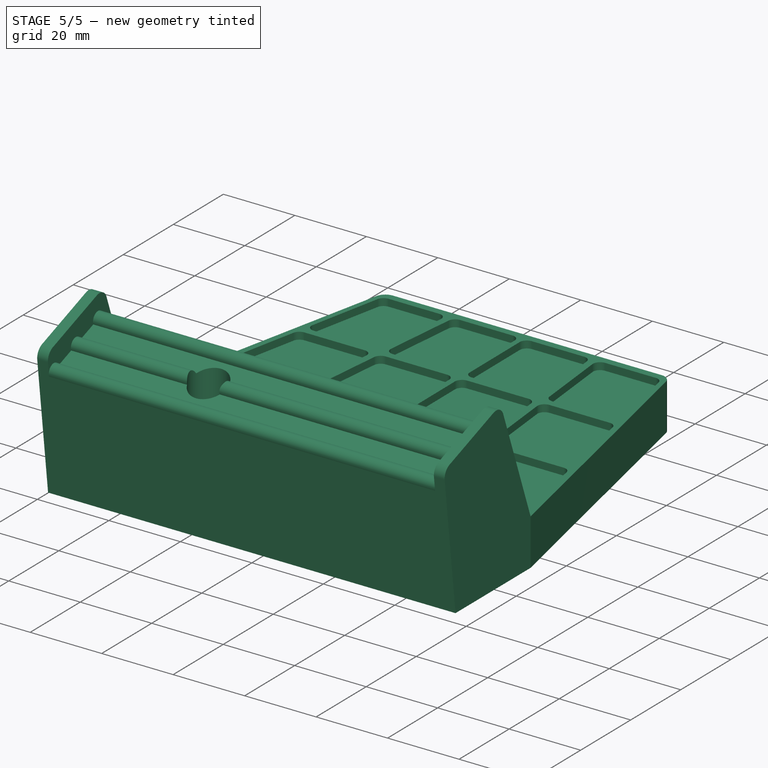
[diagram: stage 5 of 5 — iso view after this stage's code; geometry added in this stage tinted green]
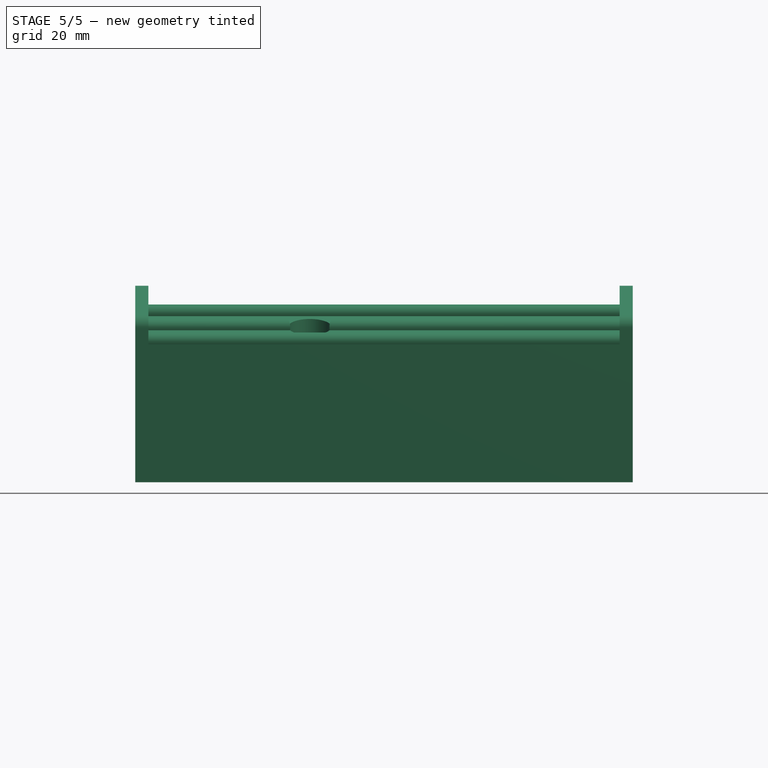
[diagram: stage 5 of 5 — front view after this stage's code; geometry added in this stage tinted green]
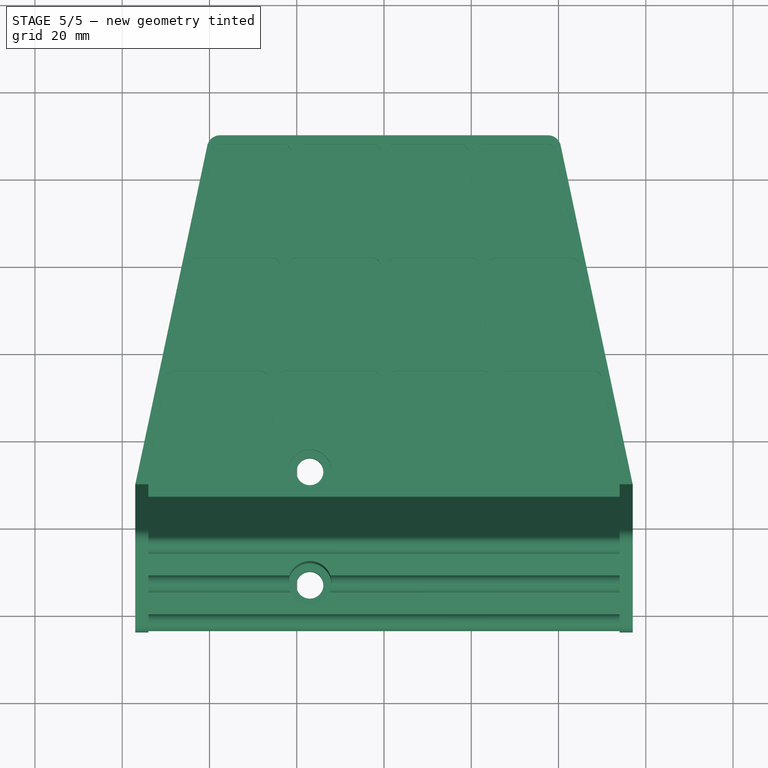
[diagram: stage 5 of 5 — top view after this stage's code; geometry added in this stage tinted green]
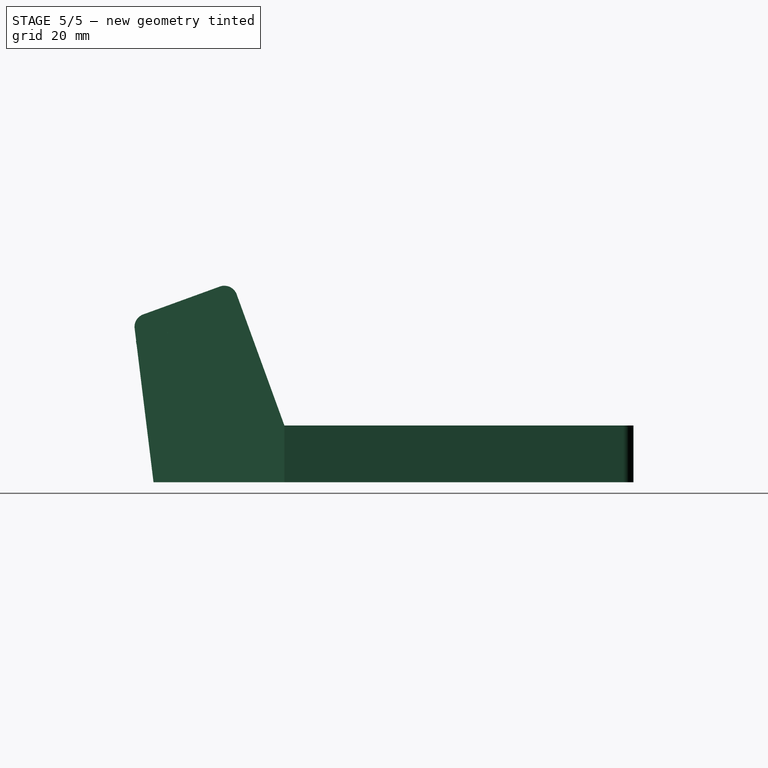
[diagram: stage 5 of 5 — right view after this stage's code; geometry added in this stage tinted green]
FEATURE [Part::Cut] Cut001  label="Cut (remove bolt holes)"
  Base = -> Fusion001
  Tool = -> Fusion
FEATURE [Part::Cut] Cut002  label="Cut (pedal left)"
  Base = -> Cut001
  Tool = -> Pad009
FEATURE [Part::Mirroring] Part__Mirroring  label="Mirror (pedal right)"
  Base = (0,0,0)
  Normal = (1,0,0)
  Placement = pos=(200,0,0) rot=(0,0,1;0rad)
  Source = -> Cut002
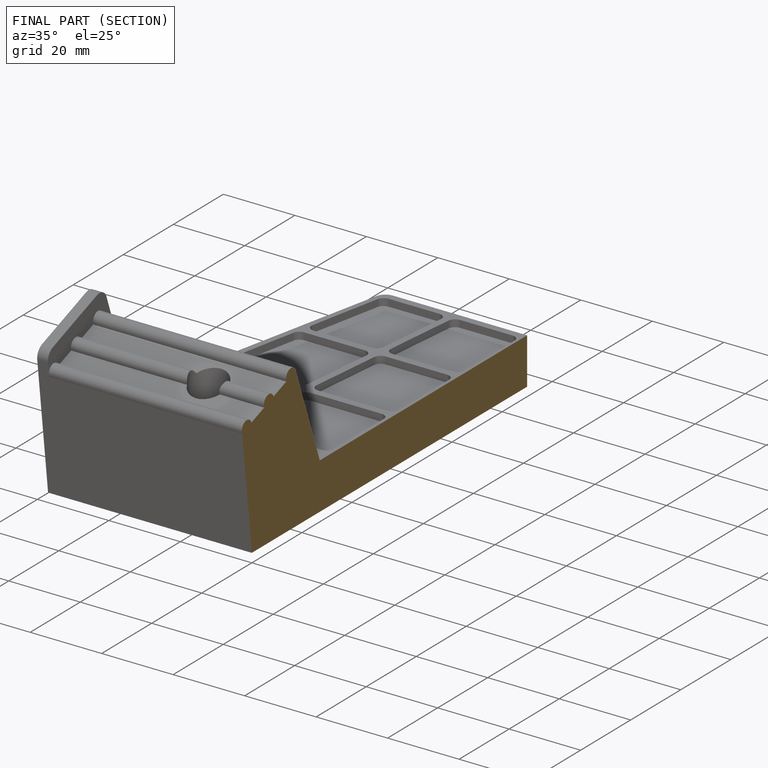
[diagram: finished part — half-section view (interior)]
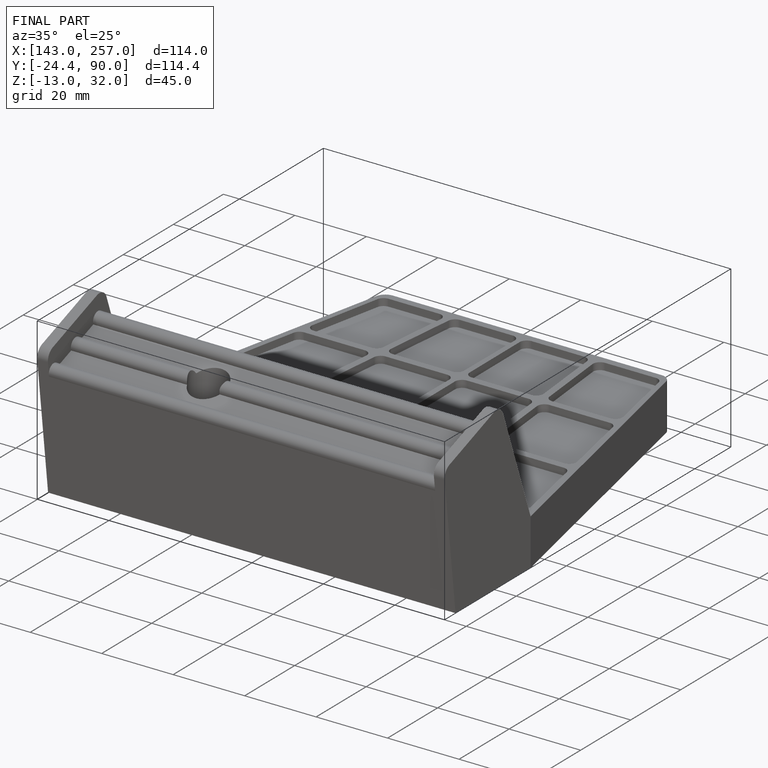
[diagram: finished part — iso view with bounding-box wireframe]
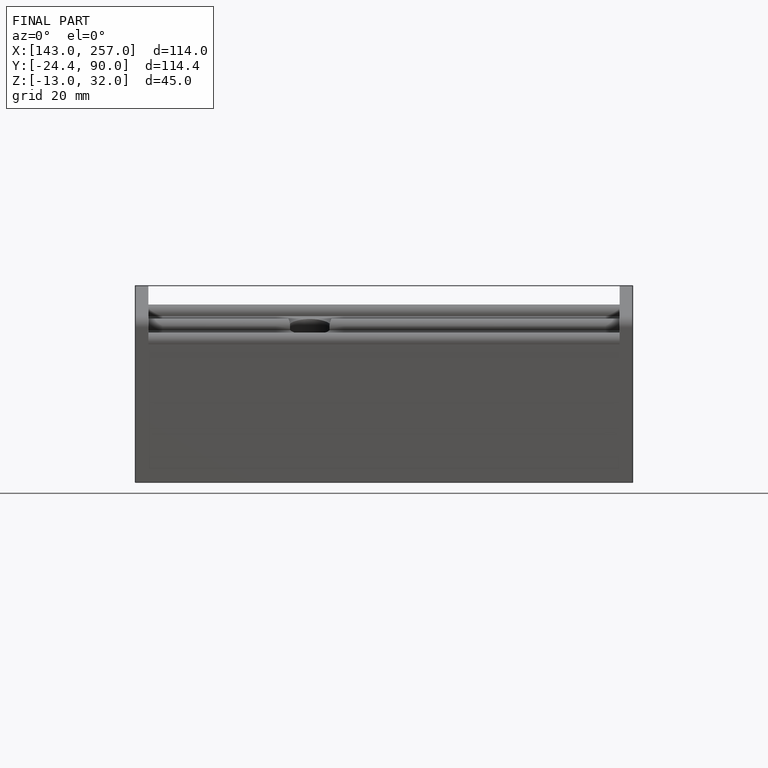
[diagram: finished part — front view with bounding-box wireframe]
